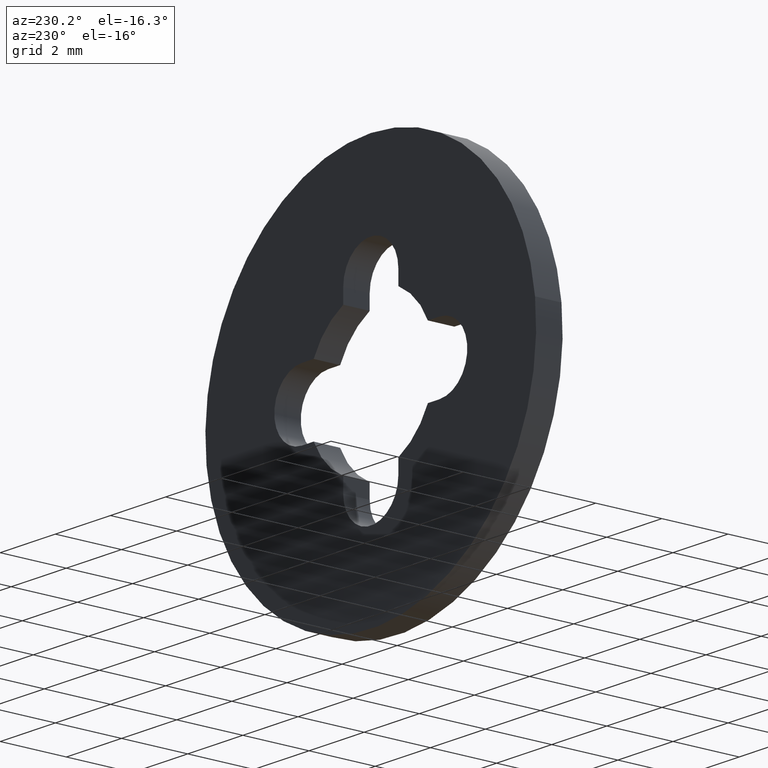
[diagram: clean part render]
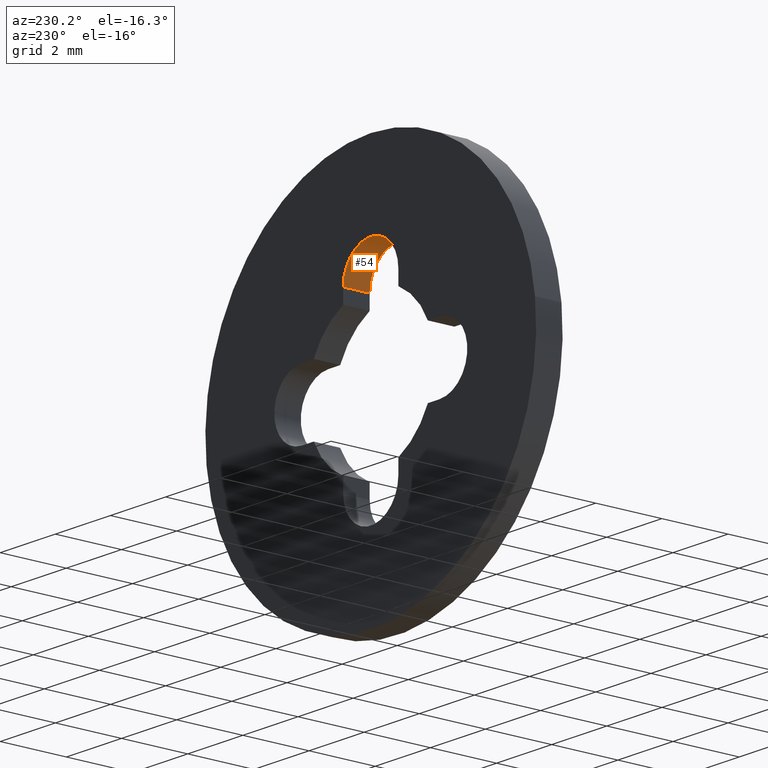
[diagram: same view with one face highlighted and labeled with its STEP entity id]
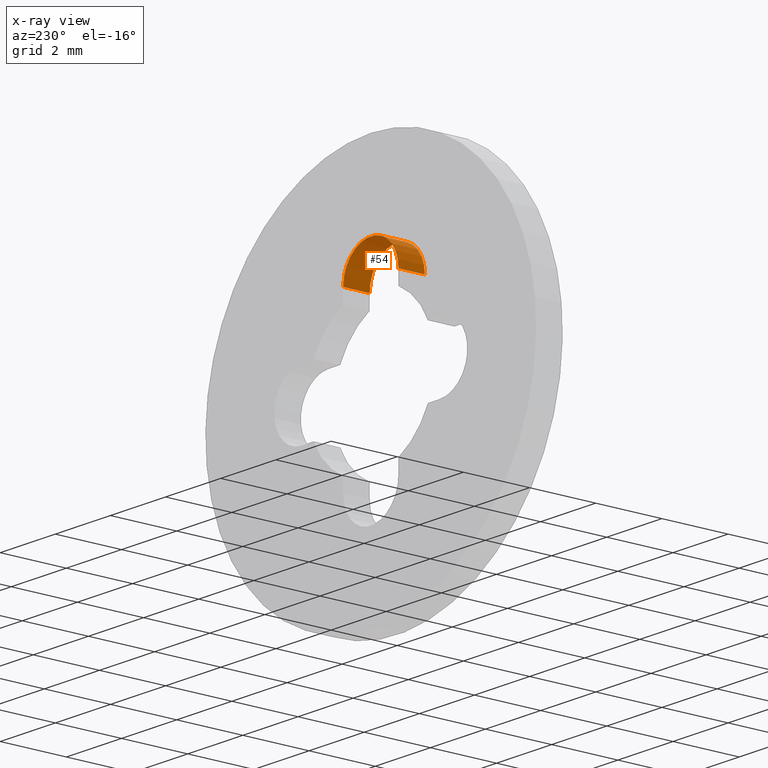
[diagram: x-ray of the same camera — body ghosted, the highlighted face saturated]
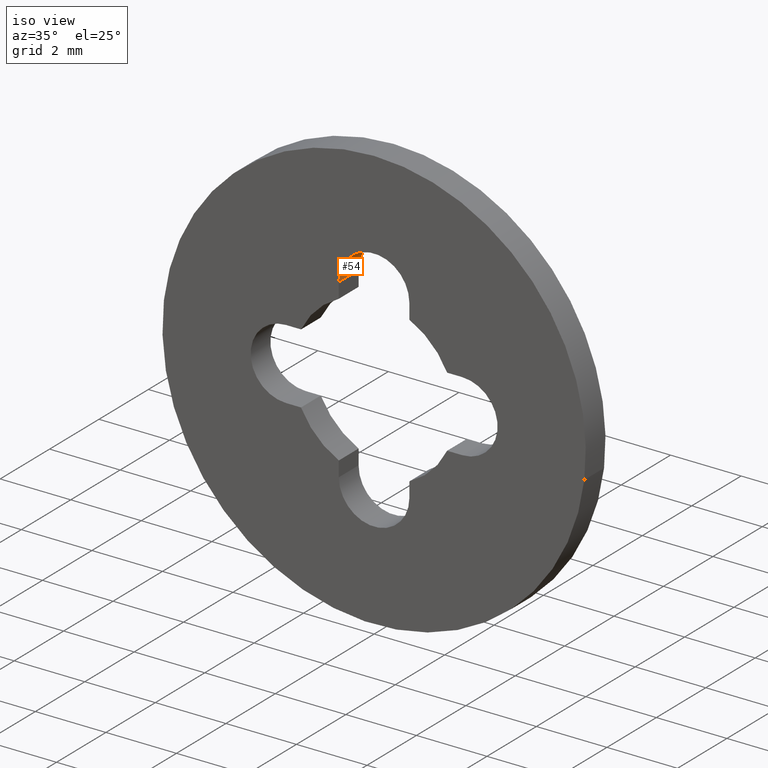
[diagram: same view with one face highlighted and labeled with its STEP entity id]
A machine part, auxiliary view. The second image highlights one B-rep face of the part: STEP entity #54.
The next image is the same camera in x-ray: the body ghosted, the highlighted face saturated — about 0% of this face is hidden behind the body in this view.
A second angle (iso view) of the same face is appended — the face is thin or edge-on in the first view.
In plain terms, the highlighted cylindrical surface (partial cylindrical patch) has radius 1 mm, axis along (0, -1, -0).
Its self-contained STEP definition (entity closure, byte-faithful):
#54=ADVANCED_FACE('',(#203),#202,.F.);
#202=CYLINDRICAL_SURFACE('',#337,1.00000000000E+00);
#203=FACE_OUTER_BOUND('',#338,.T.);
#334=CARTESIAN_POINT('',(7.18316976307E-17,-2.05000000000E-02,2.50000000000E+00));
#335=DIRECTION('',(1.25203670198E-17,-1.00000000000E+00,-4.78133526319E-16));
#336=DIRECTION('',(-8.72653549837E-03,4.78006061032E-16,-9.99961923064E-01));
#337=AXIS2_PLACEMENT_3D('',#334,#335,#336);
#338=EDGE_LOOP('',(#450,#451,#452,#453));
#450=ORIENTED_EDGE('',*,*,#511,.T.);
#451=ORIENTED_EDGE('',*,*,#526,.F.);
#452=ORIENTED_EDGE('',*,*,#483,.F.);
#453=ORIENTED_EDGE('',*,*,#527,.T.);
#483=EDGE_CURVE('',#575,#582,#583,.T.);
#511=EDGE_CURVE('',#778,#771,#779,.T.);
#526=EDGE_CURVE('',#582,#771,#870,.T.);
#527=EDGE_CURVE('',#575,#778,#876,.T.);
#575=VERTEX_POINT('',#936);
#582=VERTEX_POINT('',#940);
#583=CIRCLE('',#944,1.00000000000E+00);
#771=VERTEX_POINT('',#1063);
#778=VERTEX_POINT('',#1067);
#779=CIRCLE('',#1071,1.00000000000E+00);
#870=LINE('',#1116,#1117);
#876=LINE('',#1119,#1120);
#936=CARTESIAN_POINT('',(1.00000000000E+00,8.00000000000E-01,2.50000000000E+00));
#940=CARTESIAN_POINT('',(-1.00000000000E+00,8.00000000000E-01,2.50000000000E+00));
#941=CARTESIAN_POINT('',(-5.49560397189E-15,8.00000000000E-01,2.50000000000E+00));
#942=DIRECTION('',(-2.09178335811E-31,-1.00000000000E+00,-3.92523114671E-17));
#943=DIRECTION('',(1.00000000000E+00,4.80686300248E-33,-5.45153115358E-15));
#944=AXIS2_PLACEMENT_3D('',#941,#942,#943);
#1063=CARTESIAN_POINT('',(-1.00000000000E+00,0.00000000000E+00,2.50000000000E+00));
#1067=CARTESIAN_POINT('',(1.00000000000E+00,0.00000000000E+00,2.50000000000E+00));
#1068=CARTESIAN_POINT('',(-5.49560397189E-15,0.00000000000E+00,2.50000000000E+00));
#1069=DIRECTION('',(0.00000000000E+00,-1.00000000000E+00,0.00000000000E+00));
#1070=DIRECTION('',(1.00000000000E+00,0.00000000000E+00,-5.45153115358E-15));
#1071=AXIS2_PLACEMENT_3D('',#1068,#1069,#1070);
#1116=CARTESIAN_POINT('',(-1.00000000000E+00,8.00000000000E-01,2.50000000000E+00));
#1117=VECTOR('',#1118,8.00000000000E-01);
#1118=DIRECTION('',(0.00000000000E+00,-1.00000000000E+00,0.00000000000E+00));
#1119=CARTESIAN_POINT('',(1.00000000000E+00,8.00000000000E-01,2.50000000000E+00));
#1120=VECTOR('',#1121,8.00000000000E-01);
#1121=DIRECTION('',(0.00000000000E+00,-1.00000000000E+00,0.00000000000E+00));